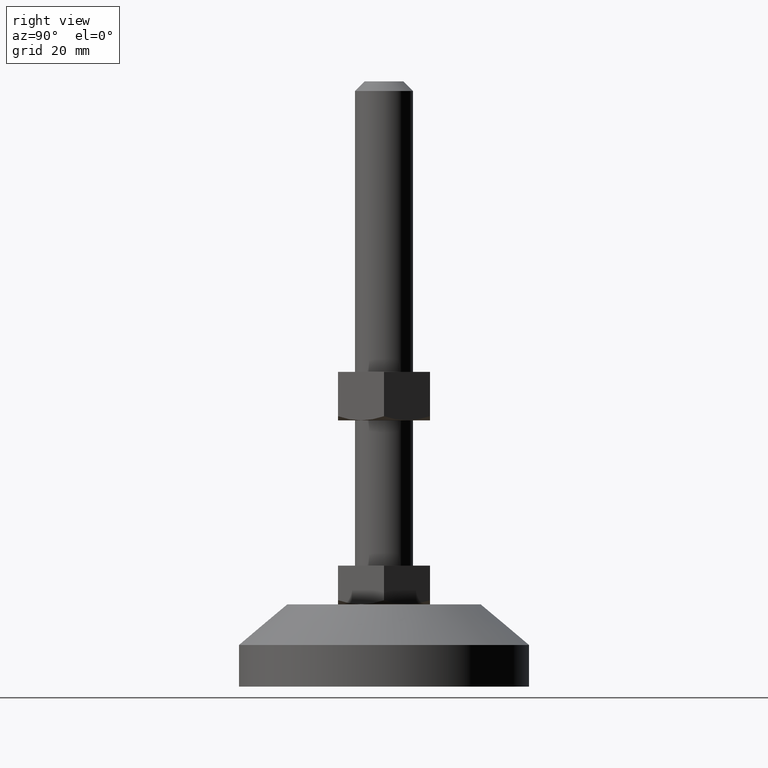
[diagram: clean part render]
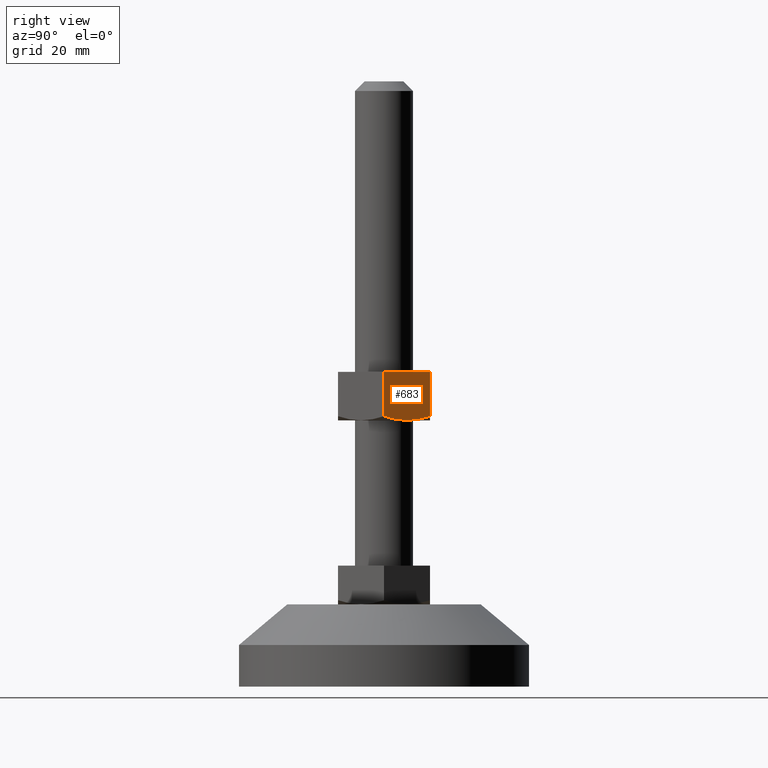
[diagram: same view with one face highlighted and labeled with its STEP entity id]
A machine part, right view. The second image highlights one B-rep face of the part: STEP entity #683.
In plain terms, the highlighted face is a freeform B-spline surface patch.
Its self-contained STEP definition (entity closure, byte-faithful):
#224=CARTESIAN_POINT('',(8.227241667976109,4.749999709056841,55.0));
#225=VERTEX_POINT('',#224);
#351=CARTESIAN_POINT('',(5.484827999999999,9.500000000000108,55.848505809115203));
#352=VERTEX_POINT('',#351);
#353=CARTESIAN_POINT('',(8.227241667976109,4.749999709056841,55.0));
#354=CARTESIAN_POINT('',(8.112393618032444,4.948922386921615,55.000001099143077));
#355=CARTESIAN_POINT('',(7.996988618786081,5.148809729373880,55.004845918307012));
#356=CARTESIAN_POINT('',(7.765462585061790,5.549824623805518,55.024220412856643));
#357=CARTESIAN_POINT('',(7.649231040336660,5.751143585167246,55.038873713302820));
#358=CARTESIAN_POINT('',(7.301699510705190,6.353085912883141,55.096877148998743));
#359=CARTESIAN_POINT('',(7.071565349603906,6.751690012969115,55.154303651455912));
#360=CARTESIAN_POINT('',(6.385260090205439,7.940405712531833,55.376053780351249));
#361=CARTESIAN_POINT('',(5.933170250980944,8.723448363217587,55.589655266039507));
#362=CARTESIAN_POINT('',(5.484827999999967,9.500000000000165,55.848505809114812));
#363=B_SPLINE_CURVE_WITH_KNOTS('',3,(#353,#354,#355,#356,#357,#358,#359,#360,#361,#362),.UNSPECIFIED.,.F.,.U.,(4,2,2,2,4),(0.500936419158789,0.562500000000000,0.625000000000000,0.750000000000000,1.0),.UNSPECIFIED.);
#364=EDGE_CURVE('',#225,#352,#363,.T.);
#400=CARTESIAN_POINT('',(10.969654999999999,-1.210243E-015,55.848505615153002));
#401=VERTEX_POINT('',#400);
#416=CARTESIAN_POINT('',(10.969654999999999,-1.210243E-015,55.848505615153002));
#417=CARTESIAN_POINT('',(10.521870934968410,0.775584830259951,55.589977364667646));
#418=CARTESIAN_POINT('',(10.070822157055620,1.556824309676814,55.376903244527703));
#419=CARTESIAN_POINT('',(9.387193789200193,2.740903496609532,55.155520618224777));
#420=CARTESIAN_POINT('',(9.158138979882757,3.137638104376677,55.098137095725868));
#421=CARTESIAN_POINT('',(8.697361743561750,3.935727769748000,55.020510910102210));
#422=CARTESIAN_POINT('',(8.465637011446500,4.337086819923140,55.000300340717587));
#423=CARTESIAN_POINT('',(8.230735354992822,4.743948465023331,55.000001100087182));
#424=CARTESIAN_POINT('',(8.228988575867506,4.746973975525394,54.999999995958163));
#425=CARTESIAN_POINT('',(8.227241667884995,4.749999709214690,55.000000012486780));
#426=B_SPLINE_CURVE_WITH_KNOTS('',3,(#416,#417,#418,#419,#420,#421,#422,#423,#424,#425),.UNSPECIFIED.,.F.,.U.,(4,2,2,2,4),(0.0,0.250000000000000,0.375000000000000,0.500000000000000,0.500936419130248),.UNSPECIFIED.);
#427=EDGE_CURVE('',#401,#225,#426,.T.);
#594=CARTESIAN_POINT('',(10.969654999999999,0.0,65.0));
#595=VERTEX_POINT('',#594);
#601=CARTESIAN_POINT('',(5.484827999999999,9.500000000000108,65.0));
#602=VERTEX_POINT('',#601);
#603=CARTESIAN_POINT('',(5.484827999999999,9.500000000000108,65.0));
#604=CARTESIAN_POINT('',(10.969654999999999,0.0,65.0));
#605=QUASI_UNIFORM_CURVE('',1,(#603,#604),.UNSPECIFIED.,.F.,.U.);
#606=EDGE_CURVE('',#602,#595,#605,.T.);
#658=CARTESIAN_POINT('',(10.969654999999999,0.0,65.0));
#659=CARTESIAN_POINT('',(10.969654999999999,-1.210243E-015,55.848505615153002));
#660=QUASI_UNIFORM_CURVE('',1,(#658,#659),.UNSPECIFIED.,.F.,.U.);
#661=EDGE_CURVE('',#595,#401,#660,.T.);
#667=CARTESIAN_POINT('',(11.243622098019349,-0.474524981587160,54.500500019381938));
#668=CARTESIAN_POINT('',(5.210860754866134,9.974525236397128,54.500500019381938));
#669=CARTESIAN_POINT('',(11.243622098019349,-0.474524981587161,65.499500248838970));
#670=CARTESIAN_POINT('',(5.210860754866134,9.974525236397128,65.499500248838970));
#671=B_SPLINE_SURFACE_WITH_KNOTS('',1,1,((#667,#669),(#668,#670)),.UNSPECIFIED.,.F.,.F.,.U.,(2,2),(2,2),(0.0,12.065523605770339),(0.0,10.999000229457030),.UNSPECIFIED.);
#672=ORIENTED_EDGE('',*,*,#661,.T.);
#673=ORIENTED_EDGE('',*,*,#427,.T.);
#674=ORIENTED_EDGE('',*,*,#364,.T.);
#675=CARTESIAN_POINT('',(5.484827999999999,9.500000000000108,65.0));
#676=CARTESIAN_POINT('',(5.484827999999999,9.500000000000108,55.848505809115203));
#677=QUASI_UNIFORM_CURVE('',1,(#675,#676),.UNSPECIFIED.,.F.,.U.);
#678=EDGE_CURVE('',#602,#352,#677,.T.);
#679=ORIENTED_EDGE('',*,*,#678,.F.);
#680=ORIENTED_EDGE('',*,*,#606,.T.);
#681=EDGE_LOOP('',(#672,#673,#674,#679,#680));
#682=FACE_OUTER_BOUND('',#681,.T.);
#683=ADVANCED_FACE('',(#682),#671,.T.);